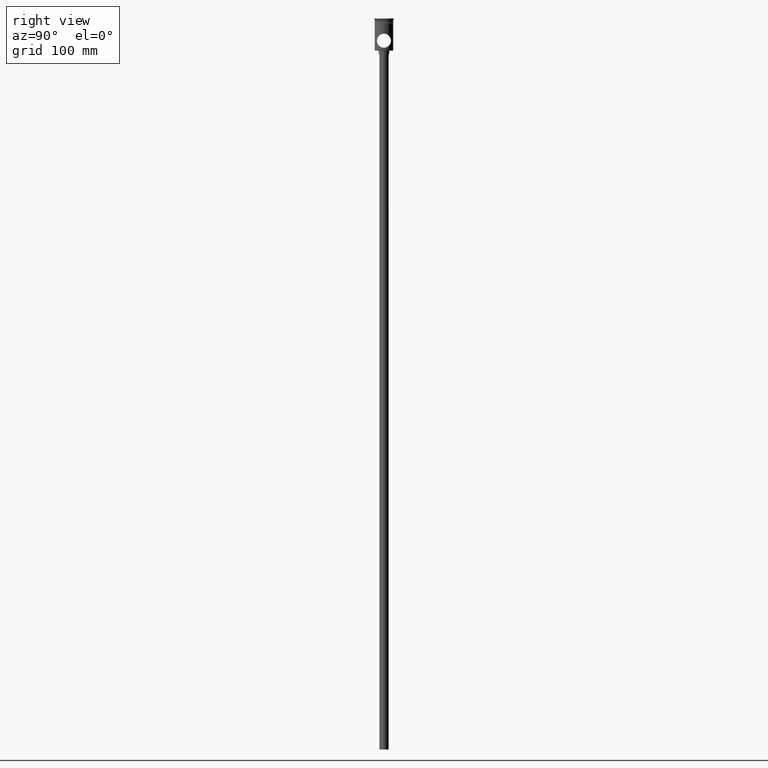
[diagram: clean part render]
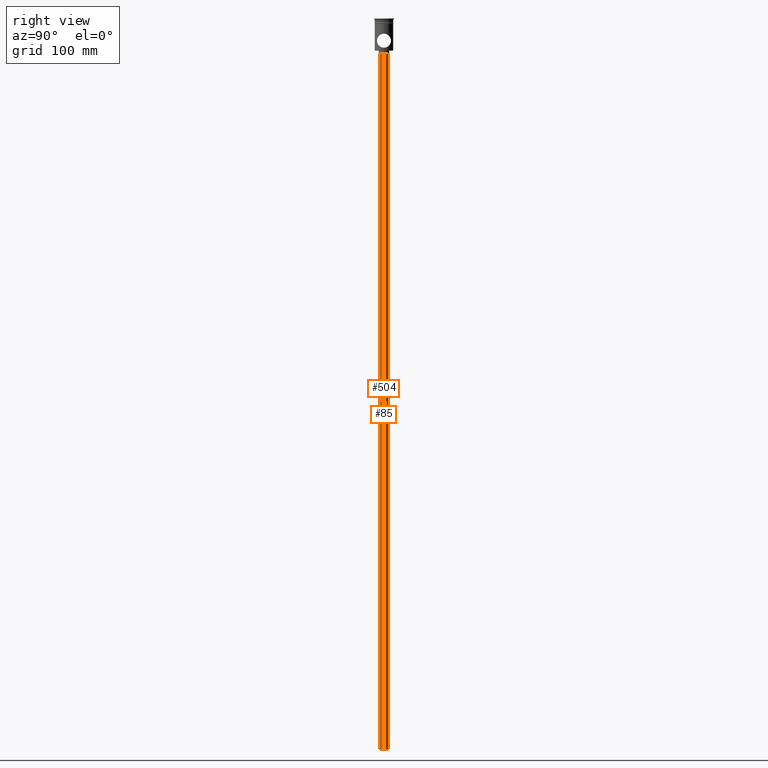
[diagram: same view with one multi-face feature highlighted, each face labeled with its STEP entity id]
A machine part, right view. The highlighted faces form ONE feature: a constant-radius fillet chain: 2 tangent blend faces with common blend radius 4 mm. The faces share edges in the B-rep.
Their STEP definitions:
[1] entity #85 (Cylinder):
#15 = VERTEX_POINT ( 'NONE', #1122 ) ;
#85 = ADVANCED_FACE ( 'NONE', ( #925 ), #339, .T. ) ;
#178 = DIRECTION ( 'NONE',  ( -1.000000000000000000, 0.000000000000000000, 0.000000000000000000 ) ) ;
#280 = EDGE_CURVE ( 'NONE', #15, #1263, #309, .T. ) ;
#309 = CIRCLE ( 'NONE', #755, 4.000000000000000000 ) ;
#316 = ORIENTED_EDGE ( 'NONE', *, *, #537, .F. ) ;
#327 = DIRECTION ( 'NONE',  ( -0.000000000000000000, -0.000000000000000000, 1.000000000000000000 ) ) ;
#339 = CYLINDRICAL_SURFACE ( 'NONE', #1490, 4.000000000000000000 ) ;
#348 = DIRECTION ( 'NONE',  ( -0.000000000000000000, -0.000000000000000000, 1.000000000000000000 ) ) ;
#402 = CARTESIAN_POINT ( 'NONE',  ( -4.000000000000000000, 4.898587196589412829E-16, -627.5000000000000000 ) ) ;
#412 = VECTOR ( 'NONE', #327, 1000.000000000000000 ) ;
#537 = EDGE_CURVE ( 'NONE', #1344, #1263, #1478, .T. ) ;
#540 = CARTESIAN_POINT ( 'NONE',  ( 4.000000000000000000, 0.000000000000000000, -627.5000000000000000 ) ) ;
#552 = EDGE_LOOP ( 'NONE', ( #849, #1316, #739, #316 ) ) ;
#594 = CARTESIAN_POINT ( 'NONE',  ( 0.000000000000000000, 0.000000000000000000, -30.50000000000000000 ) ) ;
#659 = LINE ( 'NONE', #1502, #412 ) ;
#702 = DIRECTION ( 'NONE',  ( 1.000000000000000000, 0.000000000000000000, 0.000000000000000000 ) ) ;
#739 = ORIENTED_EDGE ( 'NONE', *, *, #280, .T. ) ;
#752 = CARTESIAN_POINT ( 'NONE',  ( 0.000000000000000000, 0.000000000000000000, -627.5000000000000000 ) ) ;
#755 = AXIS2_PLACEMENT_3D ( 'NONE', #594, #982, #866 ) ;
#761 = AXIS2_PLACEMENT_3D ( 'NONE', #752, #971, #178 ) ;
#849 = ORIENTED_EDGE ( 'NONE', *, *, #1485, .F. ) ;
#866 = DIRECTION ( 'NONE',  ( -1.000000000000000000, 0.000000000000000000, 0.000000000000000000 ) ) ;
#925 = FACE_OUTER_BOUND ( 'NONE', #552, .T. ) ;
#947 = CIRCLE ( 'NONE', #761, 4.000000000000000000 ) ;
#971 = DIRECTION ( 'NONE',  ( 0.000000000000000000, 0.000000000000000000, -1.000000000000000000 ) ) ;
#982 = DIRECTION ( 'NONE',  ( 0.000000000000000000, 0.000000000000000000, -1.000000000000000000 ) ) ;
#1086 = VECTOR ( 'NONE', #1117, 1000.000000000000000 ) ;
#1117 = DIRECTION ( 'NONE',  ( -0.000000000000000000, -0.000000000000000000, 1.000000000000000000 ) ) ;
#1122 = CARTESIAN_POINT ( 'NONE',  ( -4.000000000000000000, 4.898587196589412829E-16, -30.50000000000000000 ) ) ;
#1183 = VERTEX_POINT ( 'NONE', #402 ) ;
#1203 = CARTESIAN_POINT ( 'NONE',  ( 4.000000000000000000, 0.000000000000000000, -30.50000000000000000 ) ) ;
#1247 = CARTESIAN_POINT ( 'NONE',  ( 4.000000000000000000, 0.000000000000000000, -627.5000000000000000 ) ) ;
#1263 = VERTEX_POINT ( 'NONE', #1203 ) ;
#1316 = ORIENTED_EDGE ( 'NONE', *, *, #1343, .T. ) ;
#1343 = EDGE_CURVE ( 'NONE', #1183, #15, #659, .T. ) ;
#1344 = VERTEX_POINT ( 'NONE', #540 ) ;
#1396 = CARTESIAN_POINT ( 'NONE',  ( 0.000000000000000000, 0.000000000000000000, -627.5000000000000000 ) ) ;
#1478 = LINE ( 'NONE', #1247, #1086 ) ;
#1485 = EDGE_CURVE ( 'NONE', #1183, #1344, #947, .T. ) ;
#1490 = AXIS2_PLACEMENT_3D ( 'NONE', #1396, #348, #702 ) ;
#1502 = CARTESIAN_POINT ( 'NONE',  ( -4.000000000000000000, 4.898587196589412829E-16, -627.5000000000000000 ) ) ;
[2] entity #504 (Cylinder):
#15 = VERTEX_POINT ( 'NONE', #1122 ) ;
#18 = AXIS2_PLACEMENT_3D ( 'NONE', #436, #1380, #1152 ) ;
#46 = EDGE_CURVE ( 'NONE', #1344, #1183, #160, .T. ) ;
#67 = CYLINDRICAL_SURFACE ( 'NONE', #434, 4.000000000000000000 ) ;
#72 = ORIENTED_EDGE ( 'NONE', *, *, #1343, .F. ) ;
#160 = CIRCLE ( 'NONE', #257, 4.000000000000000000 ) ;
#168 = ORIENTED_EDGE ( 'NONE', *, *, #537, .T. ) ;
#257 = AXIS2_PLACEMENT_3D ( 'NONE', #1273, #1287, #1507 ) ;
#327 = DIRECTION ( 'NONE',  ( -0.000000000000000000, -0.000000000000000000, 1.000000000000000000 ) ) ;
#402 = CARTESIAN_POINT ( 'NONE',  ( -4.000000000000000000, 4.898587196589412829E-16, -627.5000000000000000 ) ) ;
#412 = VECTOR ( 'NONE', #327, 1000.000000000000000 ) ;
#434 = AXIS2_PLACEMENT_3D ( 'NONE', #664, #1124, #1357 ) ;
#436 = CARTESIAN_POINT ( 'NONE',  ( 0.000000000000000000, 0.000000000000000000, -30.50000000000000000 ) ) ;
#504 = ADVANCED_FACE ( 'NONE', ( #1486 ), #67, .T. ) ;
#537 = EDGE_CURVE ( 'NONE', #1344, #1263, #1478, .T. ) ;
#540 = CARTESIAN_POINT ( 'NONE',  ( 4.000000000000000000, 0.000000000000000000, -627.5000000000000000 ) ) ;
#564 = ORIENTED_EDGE ( 'NONE', *, *, #46, .F. ) ;
#659 = LINE ( 'NONE', #1502, #412 ) ;
#664 = CARTESIAN_POINT ( 'NONE',  ( 0.000000000000000000, 0.000000000000000000, -627.5000000000000000 ) ) ;
#817 = EDGE_CURVE ( 'NONE', #1263, #15, #1389, .T. ) ;
#888 = EDGE_LOOP ( 'NONE', ( #72, #564, #168, #1304 ) ) ;
#1086 = VECTOR ( 'NONE', #1117, 1000.000000000000000 ) ;
#1117 = DIRECTION ( 'NONE',  ( -0.000000000000000000, -0.000000000000000000, 1.000000000000000000 ) ) ;
#1122 = CARTESIAN_POINT ( 'NONE',  ( -4.000000000000000000, 4.898587196589412829E-16, -30.50000000000000000 ) ) ;
#1124 = DIRECTION ( 'NONE',  ( -0.000000000000000000, -0.000000000000000000, 1.000000000000000000 ) ) ;
#1152 = DIRECTION ( 'NONE',  ( -1.000000000000000000, 0.000000000000000000, 0.000000000000000000 ) ) ;
#1183 = VERTEX_POINT ( 'NONE', #402 ) ;
#1203 = CARTESIAN_POINT ( 'NONE',  ( 4.000000000000000000, 0.000000000000000000, -30.50000000000000000 ) ) ;
#1247 = CARTESIAN_POINT ( 'NONE',  ( 4.000000000000000000, 0.000000000000000000, -627.5000000000000000 ) ) ;
#1263 = VERTEX_POINT ( 'NONE', #1203 ) ;
#1273 = CARTESIAN_POINT ( 'NONE',  ( 0.000000000000000000, 0.000000000000000000, -627.5000000000000000 ) ) ;
#1287 = DIRECTION ( 'NONE',  ( 0.000000000000000000, 0.000000000000000000, -1.000000000000000000 ) ) ;
#1304 = ORIENTED_EDGE ( 'NONE', *, *, #817, .T. ) ;
#1343 = EDGE_CURVE ( 'NONE', #1183, #15, #659, .T. ) ;
#1344 = VERTEX_POINT ( 'NONE', #540 ) ;
#1357 = DIRECTION ( 'NONE',  ( 1.000000000000000000, 0.000000000000000000, 0.000000000000000000 ) ) ;
#1380 = DIRECTION ( 'NONE',  ( 0.000000000000000000, 0.000000000000000000, -1.000000000000000000 ) ) ;
#1389 = CIRCLE ( 'NONE', #18, 4.000000000000000000 ) ;
#1478 = LINE ( 'NONE', #1247, #1086 ) ;
#1486 = FACE_OUTER_BOUND ( 'NONE', #888, .T. ) ;
#1502 = CARTESIAN_POINT ( 'NONE',  ( -4.000000000000000000, 4.898587196589412829E-16, -627.5000000000000000 ) ) ;
#1507 = DIRECTION ( 'NONE',  ( -1.000000000000000000, 0.000000000000000000, 0.000000000000000000 ) ) ;